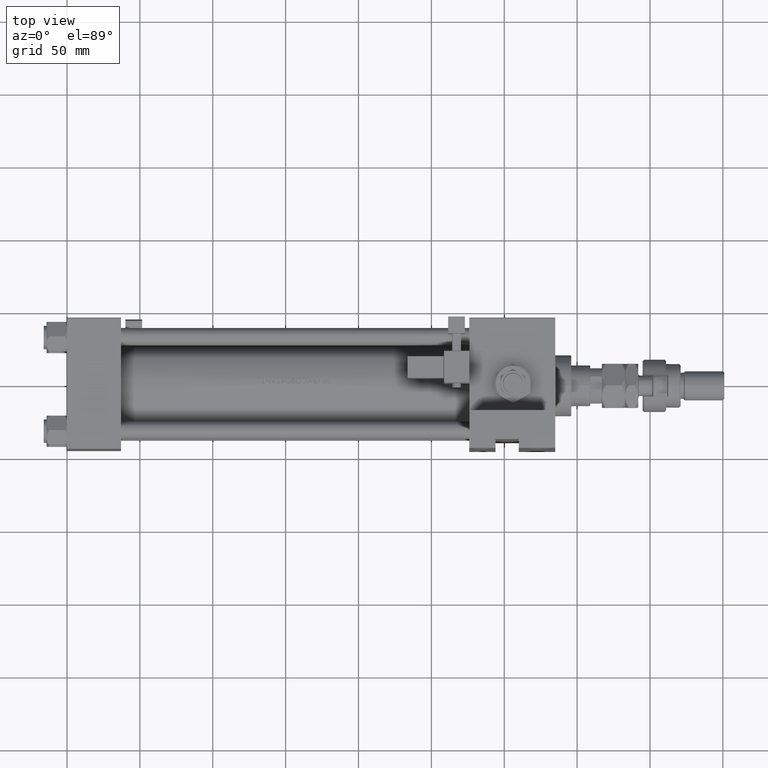
[diagram: clean part render]
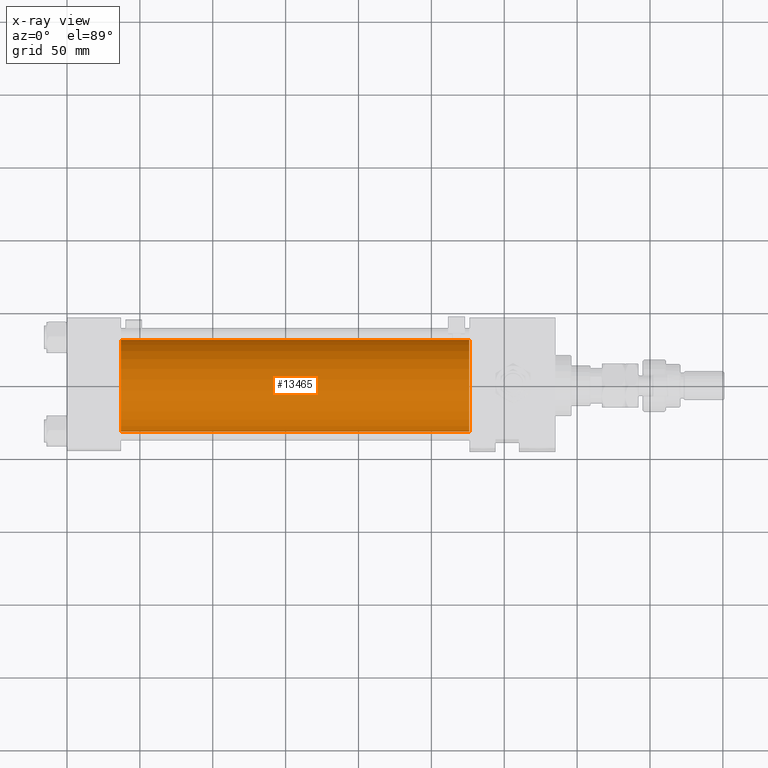
[diagram: x-ray — body ghosted, one internal face saturated and labeled with its STEP entity id]
A machine part, top view, then the same camera in x-ray: the body is ghosted and one INTERNAL B-rep face — a face not visible from any outside direction — is saturated and labeled: STEP entity #13465.
In plain terms, the highlighted cylindrical surface (partial cylindrical patch) has radius 31.5 mm, axis along (-1, -0, 0).
Its self-contained STEP definition (entity closure, byte-faithful):
#2554 = CARTESIAN_POINT ( 'NONE',  ( 275.9999999999999432, 3.857637417314161900E-15, -32.50000000000000711 ) ) ;
#3069 = CIRCLE ( 'NONE', #52924, 31.50000000000000000 ) ;
#3432 = ORIENTED_EDGE ( 'NONE', *, *, #33269, .F. ) ;
#3513 = VECTOR ( 'NONE', #23408, 1000.000000000000000 ) ;
#3876 = AXIS2_PLACEMENT_3D ( 'NONE', #20628, #50978, #41697 ) ;
#4274 = VECTOR ( 'NONE', #9540, 1000.000000000000000 ) ;
#9540 = DIRECTION ( 'NONE',  ( -1.000000000000000000, -0.000000000000000000, -0.000000000000000000 ) ) ;
#10407 = CARTESIAN_POINT ( 'NONE',  ( 37.00000000000000000, 0.000000000000000000, 30.49999999999999289 ) ) ;
#11417 = DIRECTION ( 'NONE',  ( 0.000000000000000000, 0.000000000000000000, 1.000000000000000000 ) ) ;
#12248 = CARTESIAN_POINT ( 'NONE',  ( 275.9999999999999432, 3.857637417314161900E-15, -32.50000000000000711 ) ) ;
#13465 = ADVANCED_FACE ( 'NONE', ( #28395 ), #36881, .F. ) ;
#13538 = CARTESIAN_POINT ( 'NONE',  ( 37.00000000000000000, 0.000000000000000000, -1.000000000000007772 ) ) ;
#15527 = DIRECTION ( 'NONE',  ( -1.000000000000000000, -0.000000000000000000, -0.000000000000000000 ) ) ;
#18590 = LINE ( 'NONE', #30630, #4274 ) ;
#19095 = VERTEX_POINT ( 'NONE', #12248 ) ;
#20628 = CARTESIAN_POINT ( 'NONE',  ( 275.9999999999999432, 0.000000000000000000, -1.000000000000007772 ) ) ;
#21949 = AXIS2_PLACEMENT_3D ( 'NONE', #45100, #15527, #11417 ) ;
#23408 = DIRECTION ( 'NONE',  ( -1.000000000000000000, -0.000000000000000000, -0.000000000000000000 ) ) ;
#24034 = VERTEX_POINT ( 'NONE', #10407 ) ;
#25329 = DIRECTION ( 'NONE',  ( 0.000000000000000000, 0.000000000000000000, -1.000000000000000000 ) ) ;
#26288 = ORIENTED_EDGE ( 'NONE', *, *, #52525, .T. ) ;
#26885 = VERTEX_POINT ( 'NONE', #49472 ) ;
#28395 = FACE_OUTER_BOUND ( 'NONE', #37011, .T. ) ;
#30630 = CARTESIAN_POINT ( 'NONE',  ( 275.9999999999999432, 0.000000000000000000, 30.49999999999999289 ) ) ;
#30787 = LINE ( 'NONE', #2554, #3513 ) ;
#33269 = EDGE_CURVE ( 'NONE', #41182, #24034, #18590, .T. ) ;
#35166 = ORIENTED_EDGE ( 'NONE', *, *, #36638, .T. ) ;
#36638 = EDGE_CURVE ( 'NONE', #41182, #19095, #37130, .T. ) ;
#36881 = CYLINDRICAL_SURFACE ( 'NONE', #21949, 31.50000000000000000 ) ;
#37011 = EDGE_LOOP ( 'NONE', ( #35166, #26288, #49905, #3432 ) ) ;
#37130 = CIRCLE ( 'NONE', #3876, 31.50000000000000000 ) ;
#37378 = EDGE_CURVE ( 'NONE', #24034, #26885, #3069, .T. ) ;
#41182 = VERTEX_POINT ( 'NONE', #44531 ) ;
#41697 = DIRECTION ( 'NONE',  ( 0.000000000000000000, 0.000000000000000000, -1.000000000000000000 ) ) ;
#42037 = DIRECTION ( 'NONE',  ( 1.000000000000000000, 0.000000000000000000, 0.000000000000000000 ) ) ;
#44531 = CARTESIAN_POINT ( 'NONE',  ( 275.9999999999999432, 0.000000000000000000, 30.49999999999999289 ) ) ;
#45100 = CARTESIAN_POINT ( 'NONE',  ( 275.9999999999999432, 0.000000000000000000, -1.000000000000007772 ) ) ;
#49472 = CARTESIAN_POINT ( 'NONE',  ( 37.00000000000000000, 3.857637417314161900E-15, -32.50000000000000711 ) ) ;
#49905 = ORIENTED_EDGE ( 'NONE', *, *, #37378, .F. ) ;
#50978 = DIRECTION ( 'NONE',  ( 1.000000000000000000, 0.000000000000000000, 0.000000000000000000 ) ) ;
#52525 = EDGE_CURVE ( 'NONE', #19095, #26885, #30787, .T. ) ;
#52924 = AXIS2_PLACEMENT_3D ( 'NONE', #13538, #42037, #25329 ) ;